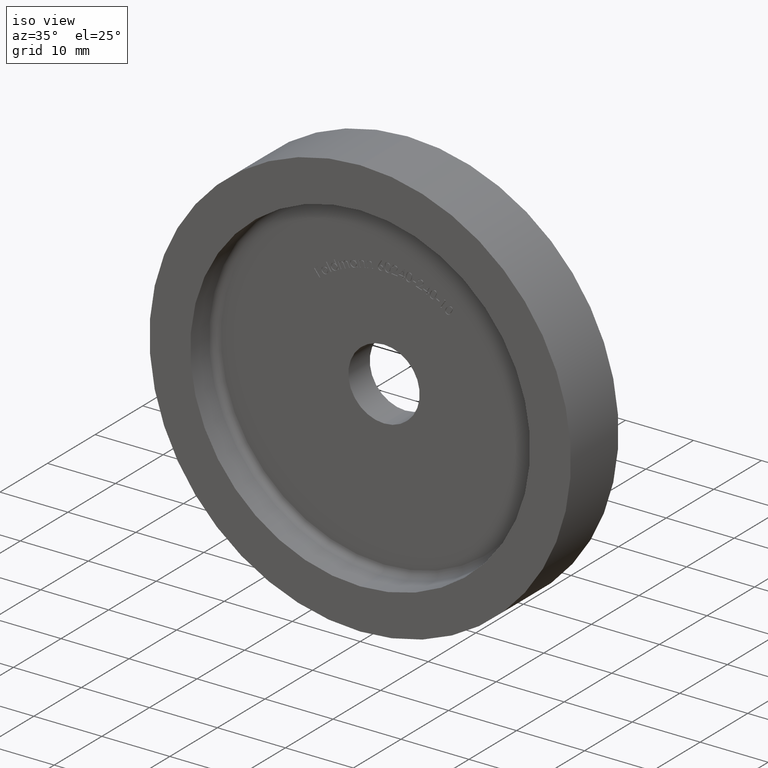
[diagram: clean part render]
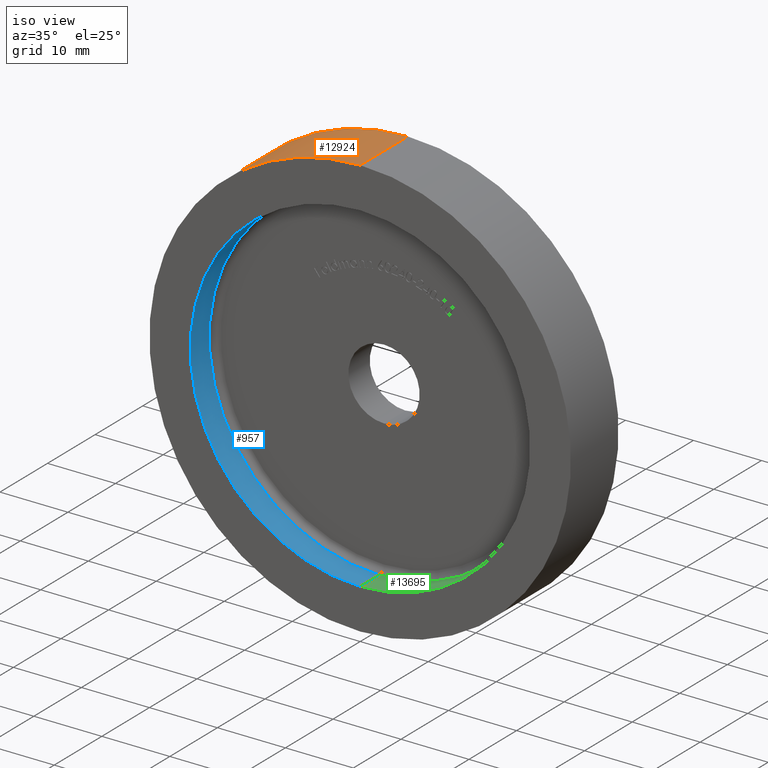
[diagram: same view with three faces highlighted in distinct colors, each labeled with its STEP entity id]
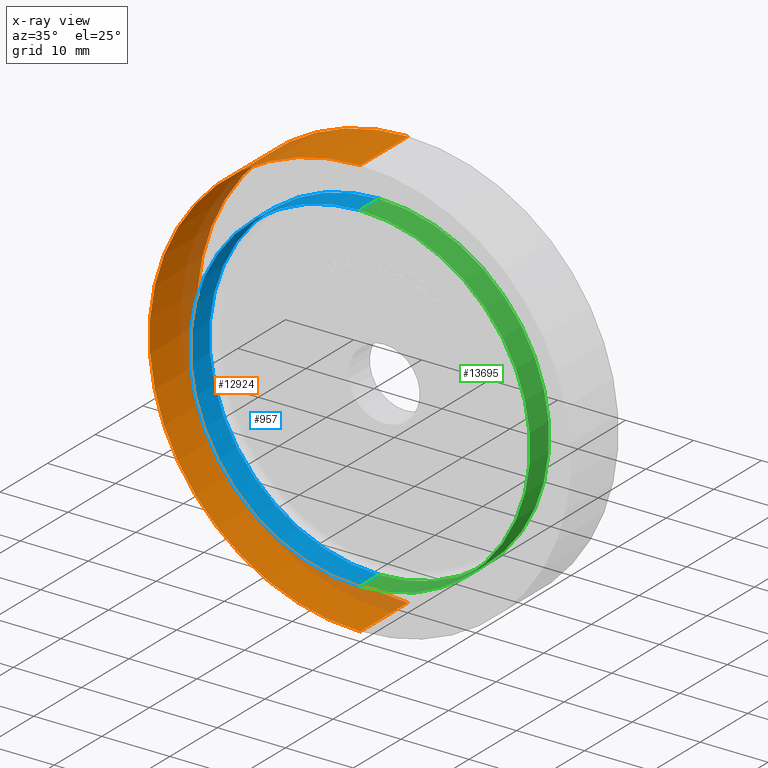
[diagram: x-ray of the same camera — body ghosted, the three highlighted faces saturated]
A machine part, iso view with three faces highlighted in distinct colors.
The next image is the same camera in x-ray (body ghosted, the three faces saturated) — at least one of them is partly hidden behind the body in this view.
Their STEP definitions:

[orange] entity #12924 — the highlighted cylindrical surface (partial cylindrical patch) has radius 31 mm, axis along (-0, 1, -0).
#378 = CARTESIAN_POINT ( 'NONE',  ( 0.000000000000000000, -3.469446951953614189E-15, 0.000000000000000000 ) ) ;
#488 = EDGE_CURVE ( 'NONE', #1664, #1111, #760, .T. ) ;
#760 = CIRCLE ( 'NONE', #12595, 31.00000000000000355 ) ;
#917 = ORIENTED_EDGE ( 'NONE', *, *, #12161, .T. ) ;
#1111 = VERTEX_POINT ( 'NONE', #2724 ) ;
#1126 = CIRCLE ( 'NONE', #9482, 31.00000000000000000 ) ;
#1476 = VECTOR ( 'NONE', #13047, 1000.000000000000000 ) ;
#1664 = VERTEX_POINT ( 'NONE', #9102 ) ;
#2012 = CYLINDRICAL_SURFACE ( 'NONE', #6368, 31.00000000000000000 ) ;
#2165 = LINE ( 'NONE', #11892, #1476 ) ;
#2270 = LINE ( 'NONE', #12253, #14266 ) ;
#2291 = CARTESIAN_POINT ( 'NONE',  ( 0.000000000000000000, 9.999999999999996447, 0.000000000000000000 ) ) ;
#2428 = CARTESIAN_POINT ( 'NONE',  ( 3.796405077356795115E-15, -3.469446951953614189E-15, -31.00000000000000000 ) ) ;
#2491 = DIRECTION ( 'NONE',  ( 0.000000000000000000, 0.000000000000000000, 1.000000000000000000 ) ) ;
#2717 = FACE_OUTER_BOUND ( 'NONE', #10619, .T. ) ;
#2724 = CARTESIAN_POINT ( 'NONE',  ( 0.000000000000000000, 9.999999999999996447, 31.00000000000000355 ) ) ;
#2786 = CARTESIAN_POINT ( 'NONE',  ( 0.000000000000000000, 9.999999999999996447, 0.000000000000000000 ) ) ;
#3309 = ORIENTED_EDGE ( 'NONE', *, *, #5309, .F. ) ;
#3731 = DIRECTION ( 'NONE',  ( -0.000000000000000000, 1.000000000000000000, -0.000000000000000000 ) ) ;
#4005 = VERTEX_POINT ( 'NONE', #2428 ) ;
#5309 = EDGE_CURVE ( 'NONE', #4005, #1664, #2270, .T. ) ;
#6096 = EDGE_CURVE ( 'NONE', #7354, #1111, #2165, .T. ) ;
#6368 = AXIS2_PLACEMENT_3D ( 'NONE', #2291, #12285, #2491 ) ;
#6780 = ORIENTED_EDGE ( 'NONE', *, *, #488, .F. ) ;
#7119 = CARTESIAN_POINT ( 'NONE',  ( 0.000000000000000000, -3.469446951953614189E-15, 31.00000000000000000 ) ) ;
#7354 = VERTEX_POINT ( 'NONE', #7119 ) ;
#8498 = DIRECTION ( 'NONE',  ( 0.000000000000000000, 0.000000000000000000, 1.000000000000000000 ) ) ;
#9102 = CARTESIAN_POINT ( 'NONE',  ( 3.796405077356795904E-15, 9.999999999999996447, -31.00000000000000711 ) ) ;
#9482 = AXIS2_PLACEMENT_3D ( 'NONE', #378, #3731, #13478 ) ;
#10225 = DIRECTION ( 'NONE',  ( -0.000000000000000000, 1.000000000000000000, -0.000000000000000000 ) ) ;
#10619 = EDGE_LOOP ( 'NONE', ( #3309, #917, #10680, #6780 ) ) ;
#10680 = ORIENTED_EDGE ( 'NONE', *, *, #6096, .T. ) ;
#11892 = CARTESIAN_POINT ( 'NONE',  ( 0.000000000000000000, 9.999999999999996447, 31.00000000000000000 ) ) ;
#12161 = EDGE_CURVE ( 'NONE', #4005, #7354, #1126, .T. ) ;
#12253 = CARTESIAN_POINT ( 'NONE',  ( 3.796405077356795115E-15, 9.999999999999996447, -31.00000000000000000 ) ) ;
#12285 = DIRECTION ( 'NONE',  ( -0.000000000000000000, 1.000000000000000000, -0.000000000000000000 ) ) ;
#12595 = AXIS2_PLACEMENT_3D ( 'NONE', #2786, #12908, #8498 ) ;
#12908 = DIRECTION ( 'NONE',  ( -0.000000000000000000, 1.000000000000000000, -0.000000000000000000 ) ) ;
#12924 = ADVANCED_FACE ( 'NONE', ( #2717 ), #2012, .T. ) ;
#13047 = DIRECTION ( 'NONE',  ( -0.000000000000000000, 1.000000000000000000, -0.000000000000000000 ) ) ;
#13478 = DIRECTION ( 'NONE',  ( 0.000000000000000000, 0.000000000000000000, 1.000000000000000000 ) ) ;
#14266 = VECTOR ( 'NONE', #10225, 1000.000000000000000 ) ;

[blue] entity #957 — the highlighted cylindrical surface (partial cylindrical patch) has radius 25 mm, axis along (-0, -1, -0).
#93 = AXIS2_PLACEMENT_3D ( 'NONE', #6683, #12224, #12174 ) ;
#307 = EDGE_CURVE ( 'NONE', #4523, #4644, #2303, .T. ) ;
#576 = CYLINDRICAL_SURFACE ( 'NONE', #11668, 25.00000000000000000 ) ;
#957 = ADVANCED_FACE ( 'NONE', ( #8894 ), #576, .F. ) ;
#972 = CARTESIAN_POINT ( 'NONE',  ( 0.000000000000000000, 0.000000000000000000, -25.00000000000000000 ) ) ;
#1128 = CARTESIAN_POINT ( 'NONE',  ( 0.000000000000000000, 4.000000000000003553, 0.000000000000000000 ) ) ;
#1552 = CARTESIAN_POINT ( 'NONE',  ( 0.000000000000000000, 80.71067811865475505, -25.00000000000000000 ) ) ;
#1682 = CARTESIAN_POINT ( 'NONE',  ( 3.061616997868383043E-15, 80.71067811865475505, 25.00000000000000000 ) ) ;
#1815 = EDGE_CURVE ( 'NONE', #4523, #12831, #6645, .T. ) ;
#1994 = LINE ( 'NONE', #1682, #13758 ) ;
#2303 = CIRCLE ( 'NONE', #5944, 25.00000000000000000 ) ;
#3169 = DIRECTION ( 'NONE',  ( -0.000000000000000000, 1.000000000000000000, -0.000000000000000000 ) ) ;
#3522 = ORIENTED_EDGE ( 'NONE', *, *, #5032, .T. ) ;
#3691 = CARTESIAN_POINT ( 'NONE',  ( 3.061616997868383043E-15, 0.000000000000000000, 25.00000000000000000 ) ) ;
#3958 = DIRECTION ( 'NONE',  ( -0.000000000000000000, -1.000000000000000000, -0.000000000000000000 ) ) ;
#4217 = ORIENTED_EDGE ( 'NONE', *, *, #1815, .F. ) ;
#4523 = VERTEX_POINT ( 'NONE', #5686 ) ;
#4644 = VERTEX_POINT ( 'NONE', #9019 ) ;
#4838 = DIRECTION ( 'NONE',  ( -0.000000000000000000, -1.000000000000000000, -0.000000000000000000 ) ) ;
#5032 = EDGE_CURVE ( 'NONE', #11396, #12831, #5546, .T. ) ;
#5546 = CIRCLE ( 'NONE', #93, 25.00000000000000000 ) ;
#5686 = CARTESIAN_POINT ( 'NONE',  ( 0.000000000000000000, 4.000000000000003553, -25.00000000000000000 ) ) ;
#5826 = DIRECTION ( 'NONE',  ( -0.000000000000000000, -1.000000000000000000, -0.000000000000000000 ) ) ;
#5944 = AXIS2_PLACEMENT_3D ( 'NONE', #1128, #3169, #10892 ) ;
#6059 = EDGE_LOOP ( 'NONE', ( #8888, #11136, #3522, #4217 ) ) ;
#6645 = LINE ( 'NONE', #1552, #12330 ) ;
#6683 = CARTESIAN_POINT ( 'NONE',  ( 0.000000000000000000, 0.000000000000000000, 0.000000000000000000 ) ) ;
#7956 = CARTESIAN_POINT ( 'NONE',  ( 0.000000000000000000, 80.71067811865475505, 0.000000000000000000 ) ) ;
#8888 = ORIENTED_EDGE ( 'NONE', *, *, #307, .T. ) ;
#8894 = FACE_OUTER_BOUND ( 'NONE', #6059, .T. ) ;
#9019 = CARTESIAN_POINT ( 'NONE',  ( 3.061616997868383043E-15, 4.000000000000003553, 25.00000000000000000 ) ) ;
#10892 = DIRECTION ( 'NONE',  ( 0.000000000000000000, 0.000000000000000000, 1.000000000000000000 ) ) ;
#11136 = ORIENTED_EDGE ( 'NONE', *, *, #12287, .T. ) ;
#11396 = VERTEX_POINT ( 'NONE', #3691 ) ;
#11668 = AXIS2_PLACEMENT_3D ( 'NONE', #7956, #5826, #12579 ) ;
#12174 = DIRECTION ( 'NONE',  ( 0.000000000000000000, 0.000000000000000000, -1.000000000000000000 ) ) ;
#12224 = DIRECTION ( 'NONE',  ( 0.000000000000000000, -1.000000000000000000, 0.000000000000000000 ) ) ;
#12287 = EDGE_CURVE ( 'NONE', #4644, #11396, #1994, .T. ) ;
#12330 = VECTOR ( 'NONE', #4838, 1000.000000000000000 ) ;
#12579 = DIRECTION ( 'NONE',  ( 0.000000000000000000, 0.000000000000000000, -1.000000000000000000 ) ) ;
#12831 = VERTEX_POINT ( 'NONE', #972 ) ;
#13758 = VECTOR ( 'NONE', #3958, 1000.000000000000000 ) ;

[green] entity #13695 — the highlighted cylindrical surface (partial cylindrical patch) has radius 25 mm, axis along (-0, -1, -0).
#554 = CARTESIAN_POINT ( 'NONE',  ( 0.000000000000000000, 0.000000000000000000, 0.000000000000000000 ) ) ;
#972 = CARTESIAN_POINT ( 'NONE',  ( 0.000000000000000000, 0.000000000000000000, -25.00000000000000000 ) ) ;
#1181 = EDGE_LOOP ( 'NONE', ( #6036, #9587, #7099, #14174 ) ) ;
#1552 = CARTESIAN_POINT ( 'NONE',  ( 0.000000000000000000, 80.71067811865475505, -25.00000000000000000 ) ) ;
#1676 = DIRECTION ( 'NONE',  ( 0.000000000000000000, 0.000000000000000000, -1.000000000000000000 ) ) ;
#1682 = CARTESIAN_POINT ( 'NONE',  ( 3.061616997868383043E-15, 80.71067811865475505, 25.00000000000000000 ) ) ;
#1815 = EDGE_CURVE ( 'NONE', #4523, #12831, #6645, .T. ) ;
#1883 = CIRCLE ( 'NONE', #12054, 25.00000000000000000 ) ;
#1956 = CIRCLE ( 'NONE', #3526, 25.00000000000000000 ) ;
#1994 = LINE ( 'NONE', #1682, #13758 ) ;
#1997 = EDGE_CURVE ( 'NONE', #4644, #4523, #1956, .T. ) ;
#3526 = AXIS2_PLACEMENT_3D ( 'NONE', #8127, #11534, #11440 ) ;
#3691 = CARTESIAN_POINT ( 'NONE',  ( 3.061616997868383043E-15, 0.000000000000000000, 25.00000000000000000 ) ) ;
#3958 = DIRECTION ( 'NONE',  ( -0.000000000000000000, -1.000000000000000000, -0.000000000000000000 ) ) ;
#4523 = VERTEX_POINT ( 'NONE', #5686 ) ;
#4644 = VERTEX_POINT ( 'NONE', #9019 ) ;
#4838 = DIRECTION ( 'NONE',  ( -0.000000000000000000, -1.000000000000000000, -0.000000000000000000 ) ) ;
#5059 = DIRECTION ( 'NONE',  ( 0.000000000000000000, -1.000000000000000000, 0.000000000000000000 ) ) ;
#5686 = CARTESIAN_POINT ( 'NONE',  ( 0.000000000000000000, 4.000000000000003553, -25.00000000000000000 ) ) ;
#6036 = ORIENTED_EDGE ( 'NONE', *, *, #12287, .F. ) ;
#6645 = LINE ( 'NONE', #1552, #12330 ) ;
#7075 = CARTESIAN_POINT ( 'NONE',  ( 0.000000000000000000, 80.71067811865475505, 0.000000000000000000 ) ) ;
#7099 = ORIENTED_EDGE ( 'NONE', *, *, #1815, .T. ) ;
#7755 = EDGE_CURVE ( 'NONE', #12831, #11396, #1883, .T. ) ;
#8127 = CARTESIAN_POINT ( 'NONE',  ( 0.000000000000000000, 4.000000000000003553, 0.000000000000000000 ) ) ;
#8469 = DIRECTION ( 'NONE',  ( 0.000000000000000000, 0.000000000000000000, -1.000000000000000000 ) ) ;
#9019 = CARTESIAN_POINT ( 'NONE',  ( 3.061616997868383043E-15, 4.000000000000003553, 25.00000000000000000 ) ) ;
#9587 = ORIENTED_EDGE ( 'NONE', *, *, #1997, .T. ) ;
#10114 = CYLINDRICAL_SURFACE ( 'NONE', #10127, 25.00000000000000000 ) ;
#10127 = AXIS2_PLACEMENT_3D ( 'NONE', #7075, #10390, #8469 ) ;
#10390 = DIRECTION ( 'NONE',  ( -0.000000000000000000, -1.000000000000000000, -0.000000000000000000 ) ) ;
#11396 = VERTEX_POINT ( 'NONE', #3691 ) ;
#11440 = DIRECTION ( 'NONE',  ( 0.000000000000000000, 0.000000000000000000, 1.000000000000000000 ) ) ;
#11534 = DIRECTION ( 'NONE',  ( -0.000000000000000000, 1.000000000000000000, -0.000000000000000000 ) ) ;
#12054 = AXIS2_PLACEMENT_3D ( 'NONE', #554, #5059, #1676 ) ;
#12287 = EDGE_CURVE ( 'NONE', #4644, #11396, #1994, .T. ) ;
#12330 = VECTOR ( 'NONE', #4838, 1000.000000000000000 ) ;
#12368 = FACE_OUTER_BOUND ( 'NONE', #1181, .T. ) ;
#12831 = VERTEX_POINT ( 'NONE', #972 ) ;
#13695 = ADVANCED_FACE ( 'NONE', ( #12368 ), #10114, .F. ) ;
#13758 = VECTOR ( 'NONE', #3958, 1000.000000000000000 ) ;
#14174 = ORIENTED_EDGE ( 'NONE', *, *, #7755, .T. ) ;